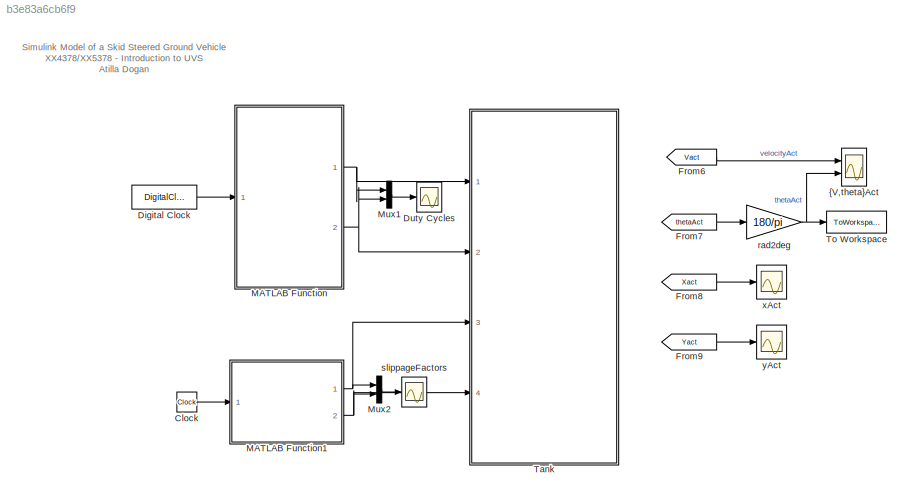
MODEL slx_b3e83a6cb6f9
KIND model
CONFIG AbsTol = auto
CONFIG EnableMultiTasking = on
CONFIG FixedStep = 0.1
CONFIG InitFcn = parameterVehicle\n
CONFIG MaxStep = auto
CONFIG MinStep = auto
CONFIG PreLoadFcn = RTWConfigurationCB('preloadfcn', bdroot);
CONFIG RelTol = 1e-3
CONFIG SampleTimeConstraint = Unconstrained
CONFIG Solver = ode45
CONFIG SolverName = ode45
CONFIG StartTime = 0.0
CONFIG StopFcn = myAnimation(xActEst,yActEst,thetaAct,X_array,Y_array,rp1,rp2)\nmyStopFcn2sim(xActEst,yActEst,X_array,Y_array,rp1,rp2)\n
CONFIG StopTime = 127
BLOCK [Clock] Clock
BLOCK [DigitalClock] Digital Clock
  SampleTime = .1
BLOCK [Scope] Duty Cycles
  Floating = off
  NumInputPorts = 1
  Ports = [1]
  ScopeSpecificationString = Simulink.scopes.TimeScopeBlockCfg('CurrentConfiguration', extmgr.ConfigurationSet(extmgr.Configuration('Core','General UI',true,'FigureColor',[0.501960784313725 0.501960784313725 0.501960784313725],'DisplayFullSourceName',true),extmgr.Configuration('Core','Source UI',true),extmgr.Configuration('Sources','WiredSimulink',true,'DataLoggingVariableName','ScopeData2','DataLoggingSaveFormat','StructureW...<+2822ch>
BLOCK [From] From6
  GotoTag = Vact
  TagVisibility = global
BLOCK [From] From7
  GotoTag = thetaAct
  TagVisibility = global
BLOCK [From] From8
  GotoTag = Xact
  TagVisibility = global
BLOCK [From] From9
  GotoTag = Yact
  TagVisibility = global
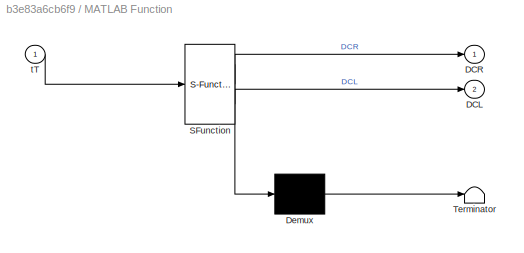
BLOCK [SubSystem] MATLAB Function
  ErrorFcn = Stateflow.Translate.translate
  PermitHierarchicalResolution = ExplicitOnly
  Ports = [1, 2]
  RequestExecContextInheritance = off
  SFBlockType = MATLAB Function
  TreatAsAtomicUnit = on
BLOCK [Demux] MATLAB Function/ Demux 
  Outputs = 1
  Ports = [1, 1]
BLOCK [S-Function] MATLAB Function/ SFunction 
  EnableBusSupport = on
  FunctionName = sf_sfun
  PortCounts = [1 3]
  Ports = [1, 3]
  SFcnIsStateOwnerBlock = off
  SFunctionDeploymentMode = off
  Tag = Stateflow S-Function Homework2 2
BLOCK [Terminator] MATLAB Function/ Terminator 
BLOCK [Outport] MATLAB Function/DCL
  IconDisplay = Port number
  Port = 2
BLOCK [Outport] MATLAB Function/DCR
  IconDisplay = Port number
BLOCK [Inport] MATLAB Function/tT
  IconDisplay = Port number
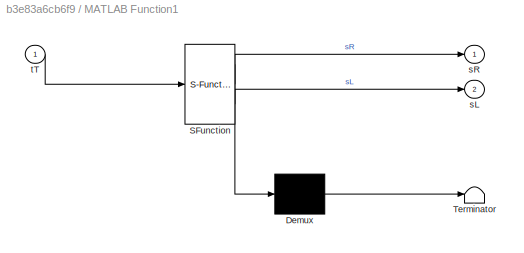
BLOCK [SubSystem] MATLAB Function1
  ErrorFcn = Stateflow.Translate.translate
  PermitHierarchicalResolution = ExplicitOnly
  Ports = [1, 2]
  RequestExecContextInheritance = off
  SFBlockType = MATLAB Function
  TreatAsAtomicUnit = on
BLOCK [Demux] MATLAB Function1/ Demux 
  Outputs = 1
  Ports = [1, 1]
BLOCK [S-Function] MATLAB Function1/ SFunction 
  EnableBusSupport = on
  FunctionName = sf_sfun
  PortCounts = [1 3]
  Ports = [1, 3]
  SFcnIsStateOwnerBlock = off
  SFunctionDeploymentMode = off
  Tag = Stateflow S-Function Homework2 3
BLOCK [Terminator] MATLAB Function1/ Terminator 
BLOCK [Outport] MATLAB Function1/sL
  IconDisplay = Port number
  Port = 2
BLOCK [Outport] MATLAB Function1/sR
  IconDisplay = Port number
BLOCK [Inport] MATLAB Function1/tT
  IconDisplay = Port number
BLOCK [Mux] Mux1
  DisplayOption = bar
  Inputs = 2
  Ports = [2, 1]
BLOCK [Mux] Mux2
  DisplayOption = bar
  Inputs = 2
  Ports = [2, 1]
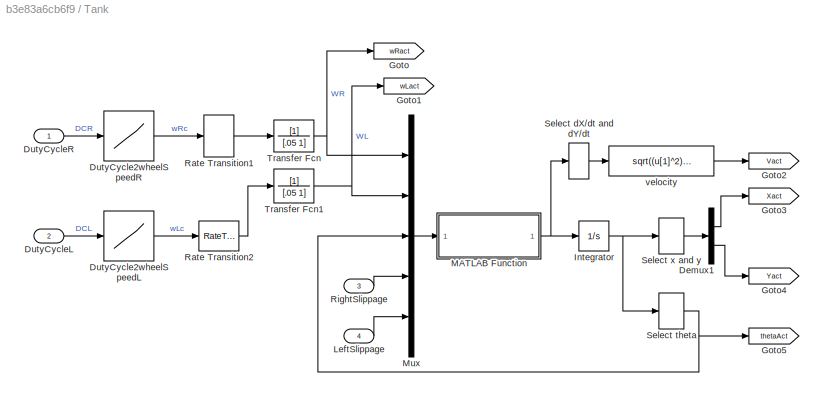
BLOCK [SubSystem] Tank
  Ports = [4]
  RequestExecContextInheritance = off
BLOCK [Demux] Tank/Demux1
  DisplayOption = bar
  Outputs = 2
  Ports = [1, 2]
BLOCK [Lookup] Tank/DutyCycle2wheelSpeedL
  InputValues = dcArray
  LookUpMeth = Interpolation-Use End Values
  SaturateOnIntegerOverflow = off
  Table = wArray
BLOCK [Lookup] Tank/DutyCycle2wheelSpeedR
  InputValues = dcArray
  LookUpMeth = Interpolation-Use End Values
  SaturateOnIntegerOverflow = off
  Table = wArray
BLOCK [Inport] Tank/DutyCycleL
  IconDisplay = Port number
  Port = 2
BLOCK [Inport] Tank/DutyCycleR
  IconDisplay = Port number
BLOCK [Goto] Tank/Goto
  GotoTag = wRact
  TagVisibility = global
BLOCK [Goto] Tank/Goto1
  GotoTag = wLact
  TagVisibility = global
BLOCK [Goto] Tank/Goto2
  GotoTag = Vact
  TagVisibility = global
BLOCK [Goto] Tank/Goto3
  GotoTag = Xact
  TagVisibility = global
BLOCK [Goto] Tank/Goto4
  GotoTag = Yact
  TagVisibility = global
BLOCK [Goto] Tank/Goto5
  GotoTag = thetaAct
  TagVisibility = global
BLOCK [Integrator] Tank/Integrator
  InitialCondition = [xIC; yIC ; thetaIC]
  Ports = [1, 1]
BLOCK [Inport] Tank/LeftSlippage
  IconDisplay = Port number
  Port = 4
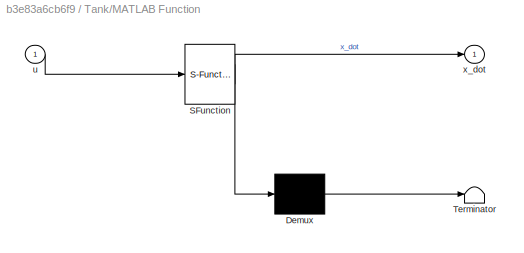
BLOCK [SubSystem] Tank/MATLAB Function
  ErrorFcn = Stateflow.Translate.translate
  PermitHierarchicalResolution = ExplicitOnly
  Ports = [1, 1]
  RequestExecContextInheritance = off
  SFBlockType = MATLAB Function
  TreatAsAtomicUnit = on
BLOCK [Demux] Tank/MATLAB Function/ Demux 
  Outputs = 1
  Ports = [1, 1]
BLOCK [S-Function] Tank/MATLAB Function/ SFunction 
  EnableBusSupport = on
  FunctionName = sf_sfun
  Parameters = b,rl,rr
  PortCounts = [1 2]
  Ports = [1, 2]
  SFcnIsStateOwnerBlock = off
  SFunctionDeploymentMode = off
  Tag = Stateflow S-Function Homework2 1
BLOCK [Terminator] Tank/MATLAB Function/ Terminator 
BLOCK [Inport] Tank/MATLAB Function/u
  IconDisplay = Port number
BLOCK [Outport] Tank/MATLAB Function/x_dot
  IconDisplay = Port number
BLOCK [Mux] Tank/Mux
  DisplayOption = bar
  Inputs = 5
  Ports = [5, 1]
BLOCK [RateTransition] Tank/Rate Transition1
BLOCK [RateTransition] Tank/Rate Transition2
BLOCK [Inport] Tank/RightSlippage
  IconDisplay = Port number
  Port = 3
BLOCK [Selector] Tank/Select dX//dt and dY//dt
  IndexOptions = Index vector (dialog)
  Indices = [1 2]
  InputPortWidth = 3
  OutputSizes = 1
  Ports = [1, 1]
BLOCK [Selector] Tank/Select theta
  IndexOptions = Index vector (dialog)
  Indices = 3
  InputPortWidth = 3
  OutputSizes = 1
  Ports = [1, 1]
BLOCK [Selector] Tank/Select x and y
  IndexOptions = Index vector (dialog)
  Indices = [1 2]
  InputPortWidth = 3
  OutputSizes = 1
  Ports = [1, 1]
BLOCK [TransferFcn] Tank/Transfer Fcn
  Denominator = [.05 1]
BLOCK [TransferFcn] Tank/Transfer Fcn1
  Denominator = [.05 1]
BLOCK [Fcn] Tank/velocity
  Expr = sqrt((u[1]^2)+(u[2]^2))
BLOCK [ToWorkspace] To Workspace
  FixptAsFi = on
  MaxDataPoints = inf
  Ports = [1]
  SampleTime = -1
  Save2DSignal = 3-D array (concatenate along third dimension)
  SaveFormat = Structure With Time
  VariableName = thetaAct
BLOCK [Gain] rad2deg
  Gain = 180/pi
  OutDataTypeStr = Inherit: Inherit via internal rule
  ParamDataTypeStr = Inherit: Inherit via internal rule
  SaturateOnIntegerOverflow = off
BLOCK [Scope] slippageFactors
  Floating = off
  NumInputPorts = 1
  Ports = [1]
  ScopeSpecificationString = Simulink.scopes.TimeScopeBlockCfg('CurrentConfiguration', extmgr.ConfigurationSet(extmgr.Configuration('Core','General UI',true),extmgr.Configuration('Core','Source UI',true),extmgr.Configuration('Sources','WiredSimulink',true,'DataLoggingVariableName','ScopeData3','DataLoggingSaveFormat','StructureWithTime','DataLoggingDecimation','1','DataLoggingDecimateData',true),extmgr.Configuration('Visuals'...<+1762ch>
BLOCK [Scope] xAct
  Floating = off
  NumInputPorts = 1
  Ports = [1]
  ScopeSpecificationString = Simulink.scopes.TimeScopeBlockCfg('CurrentConfiguration', extmgr.ConfigurationSet(extmgr.Configuration('Core','General UI',true),extmgr.Configuration('Core','Source UI',true),extmgr.Configuration('Sources','WiredSimulink',true,'DataLogging',true,'DataLoggingVariableName','xActEst','DataLoggingSaveFormat','StructureWithTime','DataLoggingDecimation','1','DataLoggingDecimateData',true),extmgr.Configu...<+1757ch>
BLOCK [Scope] yAct
  Floating = off
  NumInputPorts = 1
  Ports = [1]
  ScopeSpecificationString = Simulink.scopes.TimeScopeBlockCfg('CurrentConfiguration', extmgr.ConfigurationSet(extmgr.Configuration('Core','General UI',true),extmgr.Configuration('Core','Source UI',true),extmgr.Configuration('Sources','WiredSimulink',true,'DataLogging',true,'DataLoggingVariableName','yActEst','DataLoggingSaveFormat','StructureWithTime','DataLoggingDecimation','1','DataLoggingDecimateData',true),extmgr.Configu...<+1757ch>
BLOCK [Scope] {V,theta}Act
  Floating = off
  NumInputPorts = 2
  Ports = [2]
  ScopeSpecificationString = Simulink.scopes.TimeScopeBlockCfg('CurrentConfiguration', extmgr.ConfigurationSet(extmgr.Configuration('Core','General UI',true),extmgr.Configuration('Core','Source UI',true),extmgr.Configuration('Sources','WiredSimulink',true,'DataLoggingSaveFormat','StructureWithTime','DataLoggingDecimation','1','DataLoggingDecimateData',true),extmgr.Configuration('Visuals','Time Domain',true,'SerializedDisplays...<+2368ch>
ANNOTATION (root): Simulink Model of a Skid Steered Ground Vehicle XX4378/XX5378 - Introduction to UVS Atilla Dogan
LINE Clock:1 -> MATLAB Function1:1
LINE Digital Clock:1 -> MATLAB Function:1
LINE From6:1 -> {V,theta}Act:1
LINE From7:1 -> rad2deg:1
LINE From8:1 -> xAct:1
LINE From9:1 -> yAct:1
NET MATLAB Function1:1 -> Mux2:1, Tank:3
NET MATLAB Function1:2 -> Mux2:2, Tank:4
NET MATLAB Function:1 -> Mux1:1, Tank:1
NET MATLAB Function:2 -> Mux1:2, Tank:2
LINE Mux1:1 -> Duty Cycles:1
LINE Mux2:1 -> slippageFactors:1
LINE Tank/Demux1:1 -> Tank/Goto3:1
LINE Tank/Demux1:2 -> Tank/Goto4:1
LINE Tank/DutyCycle2wheelSpeedL:1 -> Tank/Rate Transition2:1
LINE Tank/DutyCycle2wheelSpeedR:1 -> Tank/Rate Transition1:1
LINE Tank/DutyCycleL:1 -> Tank/DutyCycle2wheelSpeedL:1
LINE Tank/DutyCycleR:1 -> Tank/DutyCycle2wheelSpeedR:1
NET Tank/Integrator:1 -> Tank/Select theta:1, Tank/Select x and y:1
LINE Tank/LeftSlippage:1 -> Tank/Mux:5
NET Tank/MATLAB Function:1 -> Tank/Integrator:1, Tank/Select dX//dt and dY//dt:1
LINE Tank/Mux:1 -> Tank/MATLAB Function:1
LINE Tank/Rate Transition1:1 -> Tank/Transfer Fcn:1
LINE Tank/Rate Transition2:1 -> Tank/Transfer Fcn1:1
LINE Tank/RightSlippage:1 -> Tank/Mux:4
LINE Tank/Select dX//dt and dY//dt:1 -> Tank/velocity:1
NET Tank/Select theta:1 -> Tank/Goto5:1, Tank/Mux:3
LINE Tank/Select x and y:1 -> Tank/Demux1:1
NET Tank/Transfer Fcn1:1 -> Tank/Goto1:1, Tank/Mux:2
NET Tank/Transfer Fcn:1 -> Tank/Goto:1, Tank/Mux:1
LINE Tank/velocity:1 -> Tank/Goto2:1
NET rad2deg:1 -> To Workspace:1, {V,theta}Act:2
note: NET lines group one-source signal fan-out (src -> all destinations, sorted); 1:1 wires keep LINE
CHART Tank/MATLAB Function states=1 transitions=1
  STATE_LABEL 'eML_blk_kernel()'
  STATE_LABEL 'SCRIPT:\nfunction x_dot = fcn(u,b,rr,rl)\n%#codegen\n\nwr = u(1);\nwl = u(2);\ntheta = u(3);\nsr = u(4);\nsl = u(5);\nx_dot = [((1-sl)*rl*wl + (1-sr)*rr*wr)*cos(theta)/2;\n         ((1-sl)*rl*wl + (1-sr)*rr*wr)*sin(theta)/2;\n         ((1-sl)*rl*wl - (1-sr)*rr*wr)/b];'
CHART MATLAB Function states=1 transitions=1
  STATE_LABEL 'eML_blk_kernel()'
  STATE_LABEL 'SCRIPT:\nfunction [DCR,DCL] = inputDC(tT)\n%#codegen\n\n% tT  : time\n% DCR: Duty Cycle Right \n% DCL: Duty Cycle Left \n\n% initialization\nDCR=0;DCL=0;\n\nif tT > 10\n    DCR=70; \n    DCL=70; \nend\n\n    if tT > 20 && tT < 30\n    DCR = 44; \n    DCL = 23;\n    end\n    \nif tT > 45 && tT < 50\n    DCR = 14; \n    DCL = 64;\nend\n\nif tT > 50 && tT < 54\n    DCR = 9;\n    DCL = 59.5;\nend\n\nif tT > 76 && tT < 80\n    DCR = ...<+80ch>'
CHART MATLAB Function1 states=1 transitions=1
  STATE_LABEL 'eML_blk_kernel()'
  STATE_LABEL 'SCRIPT:\nfunction [sR,sL] = slipFnc(tT)\n%#codegen\n\n% tT  : time\n% sR  : slippage on Right Track\n% sL  : slippage on Left Track\n\n% initialization\nsR=0;sL=0;\n\n% \n% if tT > 25\n%    sR=0;\n%    sL=0.2;\n% end\n  \n\n% if tT > 20 && tT < 25\n% %     sR=0.2;\n%     sL=0.2;\n% end\n%   '
